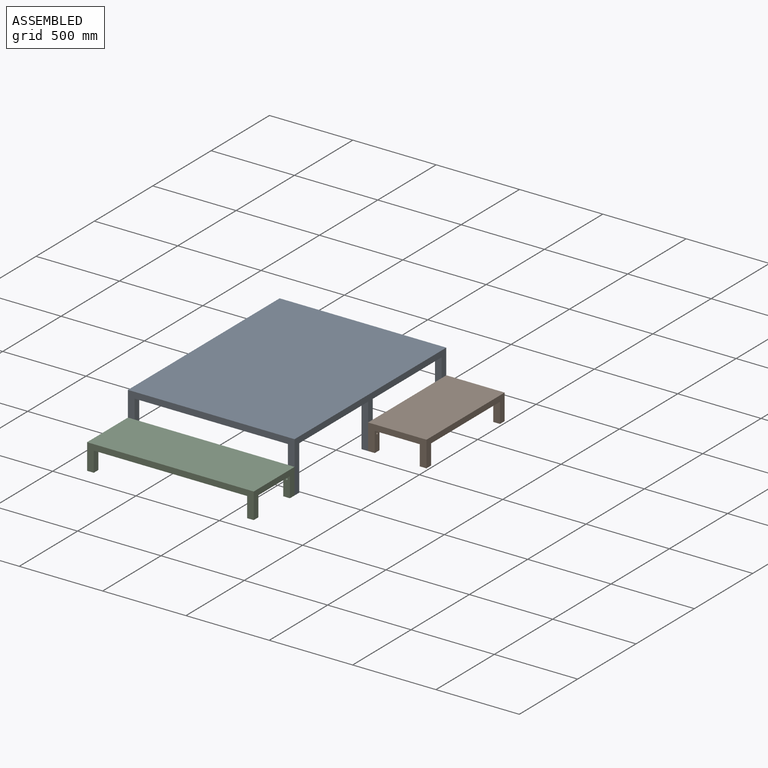
[diagram: assembled view]
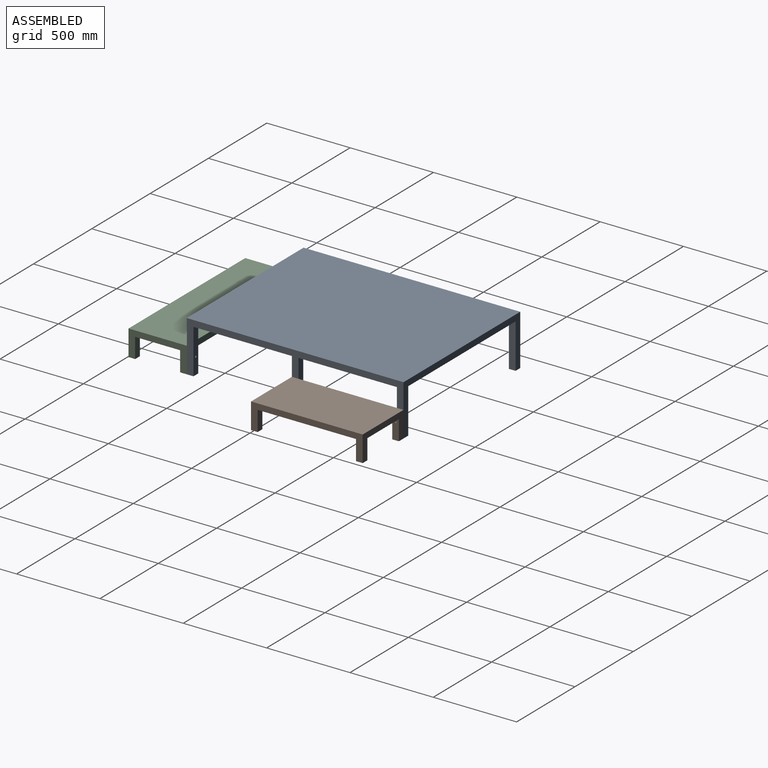
[diagram: assembled view, second angle]
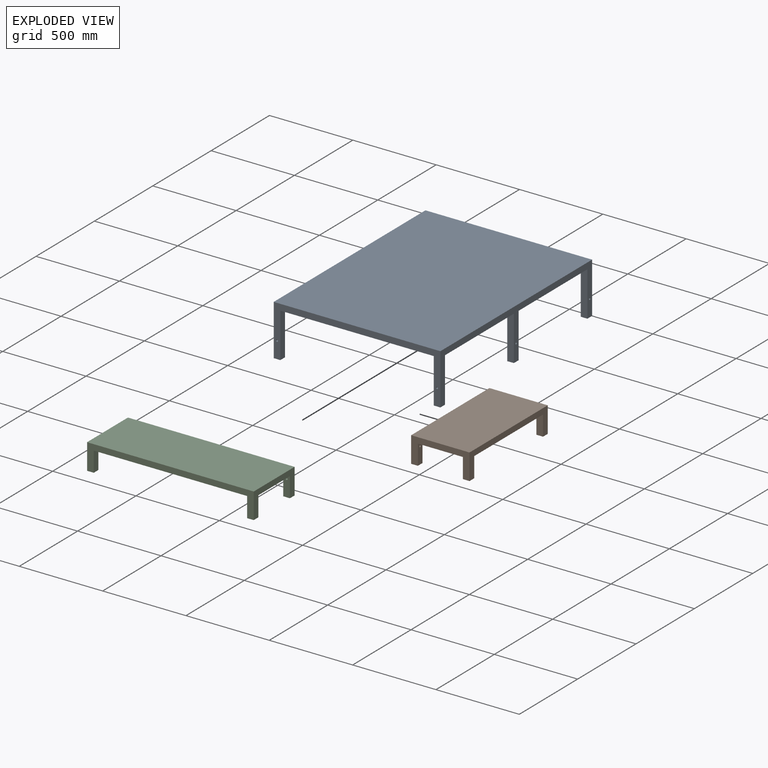
[diagram: exploded view]
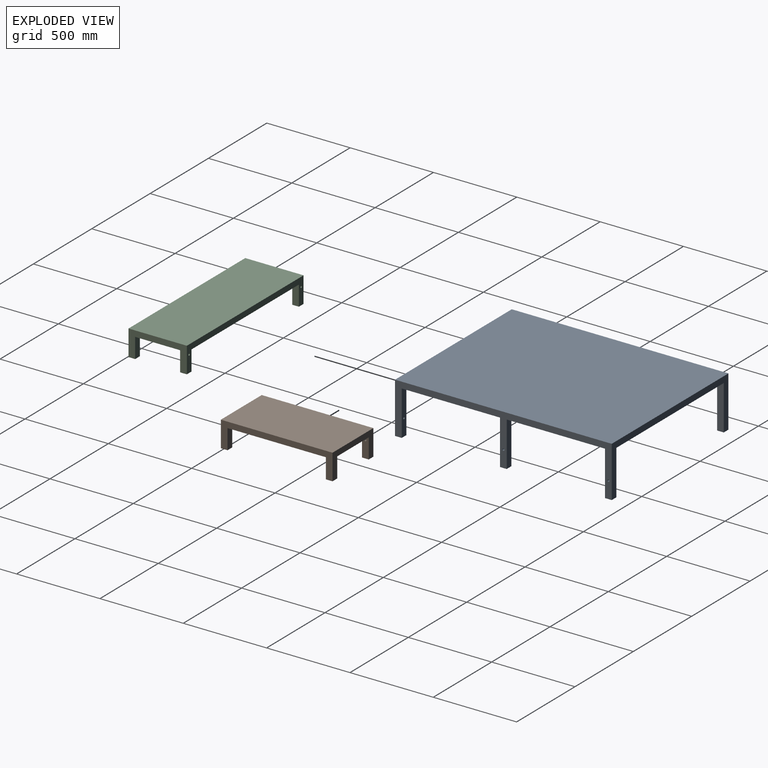
[diagram: exploded view, second angle]
ASSEMBLY  parts=3 mates=4
PART A: 38 faces, bbox 1000x1300x305 mm
  f0: plane 590x40mm, normal (0,0,-1), area 23600mm2, adj f11,f16,f23,f27
  f1: plane 590x40mm, normal (0,0,-1), area 23600mm2, adj f5,f6,f12,f14
  f2: plane 590x40mm, normal (0,0,-1), area 23600mm2, adj f11,f16,f18,f26
  f3: plane 590x40mm, normal (0,0,-1), area 23600mm2, adj f7,f8,f12,f14
  f4: plane 920x40mm, normal (0,0,-1), area 36800mm2, adj f9,f10,f13,f32
  f5: plane 268x40mm, normal (0,-1,0), area 10720mm2, adj f1,f14,f21,f22
  f6: plane 268x40mm, normal (0,1,0), area 10720mm2, adj f1,f12,f14,f29
  f7: plane 268x40mm, normal (0,1,0), area 10606.9mm2, adj f3,f10,f14,f20,f35
  f8: plane 268x40mm, normal (0,-1,0), area 10720mm2, adj f3,f12,f14,f29
  f9: plane 268x40mm, normal (1,0,0), area 10720mm2, adj f4,f13,f18,f19
  f10: plane 268x40mm, normal (-1,0,0), area 10720mm2, adj f4,f7,f13,f20
  f11: plane 1220x293mm, normal (1,0,0), area 41220mm2, adj f0,f2,f26,f27,f28,f31,f32,f33
  f12: plane 1220x293mm, normal (-1,0,0), area 41106.9mm2, adj f1,f3,f6,f8,f29,f31,f32,f33
  f13: plane 1000x305mm, normal (0,-1,0), area 58213.8mm2, adj f4,f9,f10,f14,f16,f17,f19,f20
  f14: plane 1300x305mm, normal (1,0,0), area 80033.8mm2, adj f1,f3,f5,f6,f7,f8,f13,f15
  f15: plane 1000x305mm, normal (0,1,0), area 58440mm2, adj f14,f16,f17,f21,f22,f24,f25,f30
  f16: plane 1300x305mm, normal (-1,0,0), area 80260mm2, adj f0,f2,f13,f15,f17,f18,f19,f23
  f17: plane 1300x1000mm, normal (0,0,1), area 1300000mm2, adj f13,f14,f15,f16
  f18: plane 268x40mm, normal (0,1,0), area 10606.9mm2, adj f2,f9,f16,f19,f34
  f19: plane 40x40mm, normal (0,0,-1), area 1600mm2, adj f9,f13,f16,f18
  f20: plane 40x40mm, normal (0,0,-1), area 1600mm2, adj f7,f10,f13,f14
  f21: plane 268x40mm, normal (-1,0,0), area 10606.9mm2, adj f5,f15,f22,f30,f36
  f22: plane 40x40mm, normal (0,0,-1), area 1600mm2, adj f5,f14,f15,f21
  f23: plane 268x40mm, normal (0,-1,0), area 10720mm2, adj f0,f16,f24,f25
  f24: plane 268x40mm, normal (1,0,0), area 10720mm2, adj f15,f23,f25,f30
  f25: plane 40x40mm, normal (0,0,-1), area 1600mm2, adj f15,f16,f23,f24
  f26: plane 268x40mm, normal (0,-1,0), area 10720mm2, adj f2,f11,f16,f28
  f27: plane 268x40mm, normal (0,1,0), area 10720mm2, adj f0,f11,f16,f28
  f28: plane 40x40mm, normal (0,0,-1), area 1600mm2, adj f11,f16,f26,f27
  f29: plane 40x40mm, normal (0,0,-1), area 1600mm2, adj f6,f8,f12,f14
  f30: plane 920x40mm, normal (0,0,-1), area 36800mm2, adj f15,f21,f24,f31
  f31: plane 920x25mm, normal (0,-1,0), area 23000mm2, adj f11,f12,f30,f33
  f32: plane 920x25mm, normal (0,1,0), area 23000mm2, adj f4,f11,f12,f33
  f33: plane 1220x920mm, normal (0,0,-1), area 1122400mm2, adj f11,f12,f31,f32
  f34: cylinder r=6mm len=40mm, axis (0,-1,0), area 1508mm2, adj f13,f18
  f35: cylinder r=6mm len=40mm, axis (0,-1,0), area 1508mm2, adj f7,f13
  f36: cylinder r=6mm len=40mm, axis (1,0,0), area 1508mm2, adj f14,f21
  f37: cylinder r=6mm len=40mm, axis (1,0,0), area 1508mm2, adj f12,f14
PART B: 26 faces, bbox 350x670x155 mm
  f0: plane 670x155mm, normal (-1,0,0), area 32823.8mm2, adj f4,f5,f8,f9,f11,f13,f19,f20
  f1: plane 270x30mm, normal (0,0,-1), area 8100mm2, adj f8,f12,f15,f21
  f2: plane 590x40mm, normal (0,0,-1), area 23600mm2, adj f10,f14,f15,f17
  f3: plane 270x40mm, normal (0,0,-1), area 10800mm2, adj f6,f7,f9,f22
  f4: plane 120x40mm, normal (0,-1,0), area 4800mm2, adj f0,f12,f13,f20
  f5: plane 120x40mm, normal (0,1,0), area 4800mm2, adj f0,f7,f19,f20
  f6: plane 120x40mm, normal (-1,0,0), area 4800mm2, adj f3,f9,f17,f18
  f7: plane 120x40mm, normal (1,0,0), area 4686.9mm2, adj f3,f5,f9,f19,f25
  f8: plane 350x155mm, normal (0,1,0), area 21850mm2, adj f0,f1,f10,f11,f12,f13,f15,f16
  f9: plane 350x155mm, normal (0,-1,0), area 21850mm2, adj f0,f3,f6,f7,f10,f11,f18,f19
  f10: plane 670x155mm, normal (1,0,0), area 33050mm2, adj f2,f8,f9,f11,f14,f16,f17,f18
  f11: plane 670x350mm, normal (0,0,1), area 234500mm2, adj f0,f8,f9,f10
  f12: plane 630x143mm, normal (1,0,0), area 18486.9mm2, adj f1,f4,f8,f13,f20,f21,f22,f23
  f13: plane 40x40mm, normal (0,0,-1), area 1600mm2, adj f0,f4,f8,f12
  f14: plane 120x40mm, normal (0,-1,0), area 4800mm2, adj f2,f10,f15,f16
  f15: plane 630x143mm, normal (-1,0,0), area 18600mm2, adj f1,f2,f8,f14,f16,f21,f22,f23
  f16: plane 40x40mm, normal (0,0,-1), area 1600mm2, adj f8,f10,f14,f15
  f17: plane 120x40mm, normal (0,1,0), area 4800mm2, adj f2,f6,f10,f18
  f18: plane 40x40mm, normal (0,0,-1), area 1600mm2, adj f6,f9,f10,f17
  f19: plane 40x40mm, normal (0,0,-1), area 1600mm2, adj f0,f5,f7,f9
  f20: plane 590x40mm, normal (0,0,-1), area 23600mm2, adj f0,f4,f5,f12
  f21: plane 270x23mm, normal (0,-1,0), area 6210mm2, adj f1,f12,f15,f23
  f22: plane 270x23mm, normal (0,1,0), area 6210mm2, adj f3,f12,f15,f23
  f23: plane 600x270mm, normal (0,0,-1), area 162000mm2, adj f12,f15,f21,f22
  f24: cylinder r=6mm len=40mm, axis (-1,0,0), area 1508mm2, adj f0,f12
  f25: cylinder r=6mm len=40mm, axis (-1,0,0), area 1508mm2, adj f0,f7
PART C: 28 faces, bbox 1000x350x155 mm
  f0: plane 920x40mm, normal (0,0,-1), area 36800mm2, adj f7,f12,f14,f21
  f1: plane 270x40mm, normal (0,0,-1), area 10800mm2, adj f10,f15,f18,f22
  f2: plane 270x40mm, normal (0,0,-1), area 10800mm2, adj f5,f6,f8,f24
  f3: plane 120x40mm, normal (-1,0,0), area 4800mm2, adj f6,f9,f17,f20
  f4: plane 120x40mm, normal (1,0,0), area 4800mm2, adj f9,f18,f19,f20
  f5: plane 120x40mm, normal (0,1,0), area 4800mm2, adj f2,f8,f12,f13
  f6: plane 120x40mm, normal (0,-1,0), area 4686.9mm2, adj f2,f3,f8,f17,f27
  f7: plane 1000x155mm, normal (0,-1,0), area 44600mm2, adj f0,f8,f10,f11,f12,f13,f14,f16
  f8: plane 350x155mm, normal (1,0,0), area 21850mm2, adj f2,f5,f6,f7,f9,f11,f13,f17
  f9: plane 1000x155mm, normal (0,1,0), area 44373.8mm2, adj f3,f4,f8,f10,f11,f17,f19,f20
  f10: plane 350x155mm, normal (-1,0,0), area 21850mm2, adj f1,f7,f9,f11,f15,f16,f18,f19
  f11: plane 1000x350mm, normal (0,0,1), area 350000mm2, adj f7,f8,f9,f10
  f12: plane 120x40mm, normal (-1,0,0), area 4800mm2, adj f0,f5,f7,f13
  f13: plane 40x40mm, normal (0,0,-1), area 1600mm2, adj f5,f7,f8,f12
  f14: plane 120x40mm, normal (1,0,0), area 4800mm2, adj f0,f7,f15,f16
  f15: plane 120x40mm, normal (0,1,0), area 4800mm2, adj f1,f10,f14,f16
  f16: plane 40x40mm, normal (0,0,-1), area 1600mm2, adj f7,f10,f14,f15
  f17: plane 40x40mm, normal (0,0,-1), area 1600mm2, adj f3,f6,f8,f9
  f18: plane 120x40mm, normal (0,-1,0), area 4686.9mm2, adj f1,f4,f10,f19,f26
  f19: plane 40x40mm, normal (0,0,-1), area 1600mm2, adj f4,f9,f10,f18
  f20: plane 920x40mm, normal (0,0,-1), area 36800mm2, adj f3,f4,f9,f23
  f21: plane 920x25mm, normal (0,1,0), area 23000mm2, adj f0,f22,f24,f25
  f22: plane 270x25mm, normal (1,0,0), area 6750mm2, adj f1,f21,f23,f25
  f23: plane 920x25mm, normal (0,-1,0), area 23000mm2, adj f20,f22,f24,f25
  f24: plane 270x25mm, normal (-1,0,0), area 6750mm2, adj f2,f21,f23,f25
  f25: plane 920x270mm, normal (0,0,-1), area 248400mm2, adj f21,f22,f23,f24
  f26: cylinder r=6mm len=40mm, axis (0,1,0), area 1508mm2, adj f9,f18
  f27: cylinder r=6mm len=40mm, axis (0,1,0), area 1508mm2, adj f6,f9
PLACE A t=(675.7,394.18,-50.9)mm
PLACE B t=(850.7,1359.18,-198.9)mm
PLACE C t=(675.7,44.18,-198.9)mm
MATE planar A.f13 <-> C.f9  axis (0,-1,0) through (175.7,394.18,-117.84)mm
MATE cylindrical A.f37 <-> B.f25  axis (1,0,0) through (675.7,1044.18,-248.9)mm
MATE planar A.f14 <-> B.f0  axis (1,0,0) through (675.7,1043.29,-123.15)mm
MATE cylindrical A.f34 <-> C.f26  axis (0,-1,0) through (-304.3,394.18,-248.9)mm
